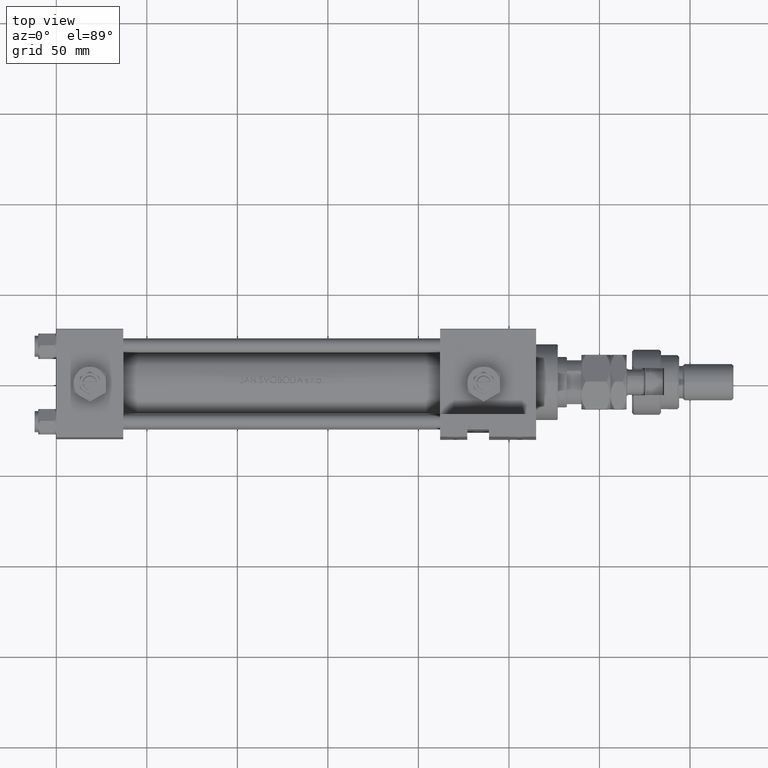
[diagram: clean part render]
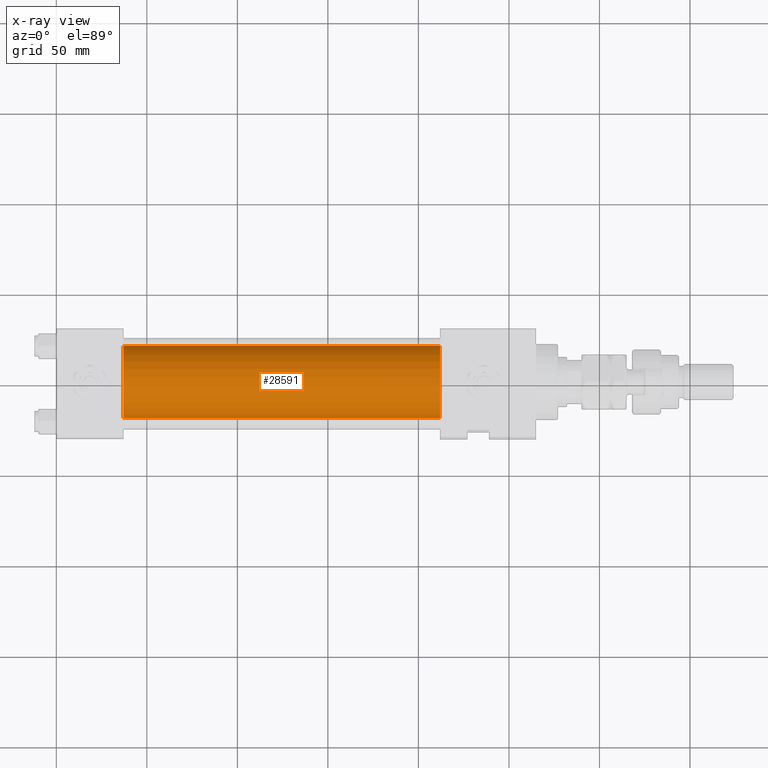
[diagram: x-ray — body ghosted, one internal face saturated and labeled with its STEP entity id]
A machine part, top view, then the same camera in x-ray: the body is ghosted and one INTERNAL B-rep face — a face not visible from any outside direction — is saturated and labeled: STEP entity #28591.
In plain terms, the highlighted cylindrical surface (edge-blend (fillet) strip) has radius 20 mm, axis along (-1, -0, 0).
Its self-contained STEP definition (entity closure, byte-faithful):
#449 = EDGE_CURVE ( 'NONE', #22698, #16040, #22173, .T. ) ;
#2624 = ORIENTED_EDGE ( 'NONE', *, *, #51787, .F. ) ;
#3264 = DIRECTION ( 'NONE',  ( 0.000000000000000000, 0.000000000000000000, -1.000000000000000000 ) ) ;
#3343 = EDGE_CURVE ( 'NONE', #28056, #22698, #8432, .T. ) ;
#5923 = DIRECTION ( 'NONE',  ( 0.000000000000000000, 0.000000000000000000, 1.000000000000000000 ) ) ;
#8256 = ORIENTED_EDGE ( 'NONE', *, *, #16907, .F. ) ;
#8432 = CIRCLE ( 'NONE', #30931, 20.00000000000000000 ) ;
#11581 = ORIENTED_EDGE ( 'NONE', *, *, #3343, .T. ) ;
#13636 = EDGE_LOOP ( 'NONE', ( #11581, #25017, #2624, #8256 ) ) ;
#15220 = DIRECTION ( 'NONE',  ( 0.000000000000000000, 0.000000000000000000, -1.000000000000000000 ) ) ;
#15427 = AXIS2_PLACEMENT_3D ( 'NONE', #52356, #32275, #15220 ) ;
#16040 = VERTEX_POINT ( 'NONE', #36349 ) ;
#16907 = EDGE_CURVE ( 'NONE', #28056, #52432, #51818, .T. ) ;
#17071 = CARTESIAN_POINT ( 'NONE',  ( 212.0000000000000000, 2.326828918379970970E-15, -19.00000000000000000 ) ) ;
#18214 = CARTESIAN_POINT ( 'NONE',  ( 212.0000000000000000, -1.224646799147354686E-16, 21.00000000000000000 ) ) ;
#22173 = LINE ( 'NONE', #29768, #30769 ) ;
#22698 = VERTEX_POINT ( 'NONE', #17071 ) ;
#23855 = CARTESIAN_POINT ( 'NONE',  ( 212.0000000000000000, -1.224646799147354686E-16, 1.000000000000000888 ) ) ;
#25017 = ORIENTED_EDGE ( 'NONE', *, *, #449, .T. ) ;
#26264 = FACE_OUTER_BOUND ( 'NONE', #13636, .T. ) ;
#27077 = CYLINDRICAL_SURFACE ( 'NONE', #38192, 20.00000000000000000 ) ;
#28056 = VERTEX_POINT ( 'NONE', #40789 ) ;
#28591 = ADVANCED_FACE ( 'NONE', ( #26264 ), #27077, .F. ) ;
#29231 = CARTESIAN_POINT ( 'NONE',  ( 37.00000000000000000, -1.224646799147354686E-16, 21.00000000000000000 ) ) ;
#29768 = CARTESIAN_POINT ( 'NONE',  ( 212.0000000000000000, 2.326828918379970970E-15, -19.00000000000000000 ) ) ;
#29864 = VECTOR ( 'NONE', #30659, 1000.000000000000000 ) ;
#30659 = DIRECTION ( 'NONE',  ( -1.000000000000000000, -0.000000000000000000, -0.000000000000000000 ) ) ;
#30769 = VECTOR ( 'NONE', #38709, 1000.000000000000000 ) ;
#30842 = CARTESIAN_POINT ( 'NONE',  ( 212.0000000000000000, -1.224646799147354686E-16, 1.000000000000000888 ) ) ;
#30931 = AXIS2_PLACEMENT_3D ( 'NONE', #23855, #52597, #3264 ) ;
#32275 = DIRECTION ( 'NONE',  ( 1.000000000000000000, 0.000000000000000000, 0.000000000000000000 ) ) ;
#36349 = CARTESIAN_POINT ( 'NONE',  ( 37.00000000000000000, 2.326828918379970970E-15, -19.00000000000000000 ) ) ;
#38192 = AXIS2_PLACEMENT_3D ( 'NONE', #30842, #43323, #5923 ) ;
#38709 = DIRECTION ( 'NONE',  ( -1.000000000000000000, -0.000000000000000000, -0.000000000000000000 ) ) ;
#40789 = CARTESIAN_POINT ( 'NONE',  ( 212.0000000000000000, -1.224646799147354686E-16, 21.00000000000000000 ) ) ;
#43103 = CIRCLE ( 'NONE', #15427, 20.00000000000000000 ) ;
#43323 = DIRECTION ( 'NONE',  ( -1.000000000000000000, -0.000000000000000000, -0.000000000000000000 ) ) ;
#51787 = EDGE_CURVE ( 'NONE', #52432, #16040, #43103, .T. ) ;
#51818 = LINE ( 'NONE', #18214, #29864 ) ;
#52356 = CARTESIAN_POINT ( 'NONE',  ( 37.00000000000000000, -1.224646799147354686E-16, 1.000000000000000888 ) ) ;
#52432 = VERTEX_POINT ( 'NONE', #29231 ) ;
#52597 = DIRECTION ( 'NONE',  ( 1.000000000000000000, 0.000000000000000000, 0.000000000000000000 ) ) ;